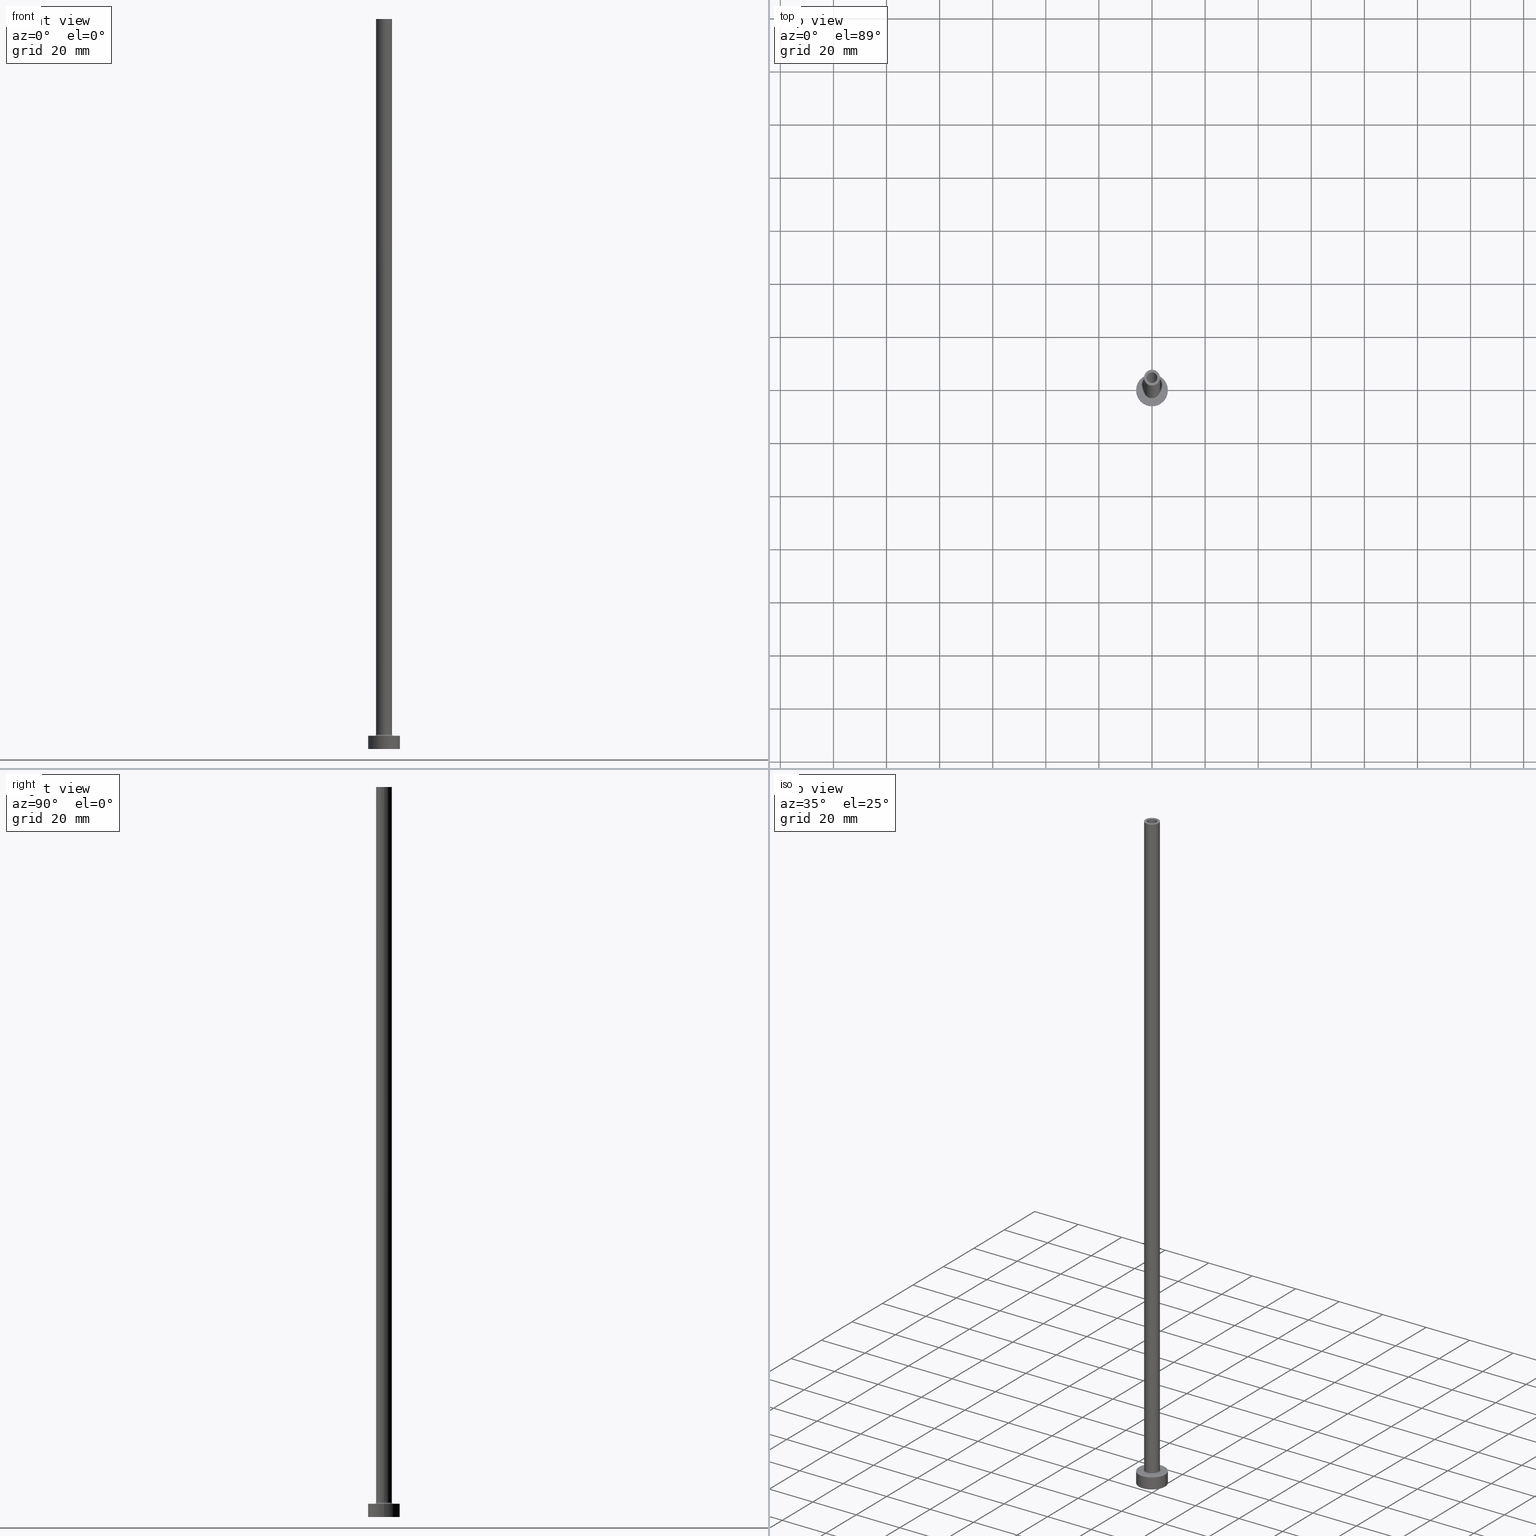
[diagram: canonical four-view strip — front | top / right | iso, engineering-drawing reading convention]
A machine part, canonical four-view strip (front | top / right | iso — engineering-drawing reading convention). The complete STEP part file that produces these views, byte-faithful:
ISO-10303-21;
HEADER;
FILE_DESCRIPTION (( 'STEP AP203' ),
    '1' );
FILE_NAME ('ea6e.STEP',
    '2023-02-13T17:44:41',
    ( '' ),
    ( '' ),
    'SwSTEP 2.0',
    'SolidWorks 2019',
    '' );
FILE_SCHEMA (( 'CONFIG_CONTROL_DESIGN' ));
ENDSEC;

DATA;
#1 = AXIS2_PLACEMENT_3D ( 'NONE', #195, #156, #51 ) ;
#2 = DIRECTION ( 'NONE',  ( 0.000000000000000000, 0.000000000000000000, -1.000000000000000000 ) ) ;
#3 = ORIENTED_EDGE ( 'NONE', *, *, #36, .T. ) ;
#4 = EDGE_CURVE ( 'NONE', #96, #62, #368, .T. ) ;
#5 = CARTESIAN_POINT ( 'NONE',  ( -2.149999999999999911, 0.000000000000000000, 236.0811183182043180 ) ) ;
#6 = DIRECTION ( 'NONE',  ( 0.000000000000000000, 0.000000000000000000, 1.000000000000000000 ) ) ;
#7 = FACE_OUTER_BOUND ( 'NONE', #302, .T. ) ;
#8 = VERTEX_POINT ( 'NONE', #103 ) ;
#9 = AXIS2_PLACEMENT_3D ( 'NONE', #200, #341, #415 ) ;
#10 = CARTESIAN_POINT ( 'NONE',  ( 2.149999999999999911, 2.632990618166809235E-16, 236.0811183182043180 ) ) ;
#11 = CARTESIAN_POINT ( 'NONE',  ( 0.000000000000000000, 0.000000000000000000, 5.500000000000005329 ) ) ;
#12 = CARTESIAN_POINT ( 'NONE',  ( 0.000000000000000000, 0.000000000000000000, 0.000000000000000000 ) ) ;
#13 = ORIENTED_EDGE ( 'NONE', *, *, #166, .F. ) ;
#14 = ADVANCED_FACE ( 'NONE', ( #397 ), #279, .F. ) ;
#15 = LINE ( 'NONE', #16, #213 ) ;
#16 = CARTESIAN_POINT ( 'NONE',  ( 2.000000000000000000, 2.449293598294705921E-16, 275.0000000000000000 ) ) ;
#17 = CC_DESIGN_DATE_AND_TIME_ASSIGNMENT ( #283, #419, ( #430 ) ) ;
#18 = CIRCLE ( 'NONE', #287, 0.4999999999999995559 ) ;
#19 = MECHANICAL_CONTEXT ( 'NONE', #172, 'mechanical' ) ;
#20 = ORIENTED_EDGE ( 'NONE', *, *, #423, .F. ) ;
#21 = DIRECTION ( 'NONE',  ( -0.000000000000000000, -0.000000000000000000, -1.000000000000000000 ) ) ;
#22 = EDGE_CURVE ( 'NONE', #396, #211, #39, .T. ) ;
#23 = VERTEX_POINT ( 'NONE', #421 ) ;
#24 = ORIENTED_EDGE ( 'NONE', *, *, #428, .T. ) ;
#25 =( NAMED_UNIT ( * ) PLANE_ANGLE_UNIT ( ) SI_UNIT ( $, .RADIAN. ) );
#26 = VERTEX_POINT ( 'NONE', #356 ) ;
#27 = CARTESIAN_POINT ( 'NONE',  ( 2.149999999999999911, 2.632990618166809235E-16, 230.0000000000000284 ) ) ;
#28 = ORIENTED_EDGE ( 'NONE', *, *, #127, .F. ) ;
#29 = ORIENTED_EDGE ( 'NONE', *, *, #317, .T. ) ;
#30 = CARTESIAN_POINT ( 'NONE',  ( -6.000000000000000888, 0.000000000000000000, 5.000000000000000000 ) ) ;
#31 = EDGE_LOOP ( 'NONE', ( #282, #450, #184, #343 ) ) ;
#32 = APPLICATION_PROTOCOL_DEFINITION ( 'international standard', 'config_control_design', 1994, #314 ) ;
#33 = ORIENTED_EDGE ( 'NONE', *, *, #114, .F. ) ;
#34 = CARTESIAN_POINT ( 'NONE',  ( 0.000000000000000000, 0.000000000000000000, 5.500000000000005329 ) ) ;
#35 = DIRECTION ( 'NONE',  ( 0.000000000000000000, 0.000000000000000000, 1.000000000000000000 ) ) ;
#36 = EDGE_CURVE ( 'NONE', #95, #227, #286, .T. ) ;
#37 = LINE ( 'NONE', #338, #48 ) ;
#38 = CC_DESIGN_PERSON_AND_ORGANIZATION_ASSIGNMENT ( #215, #80, ( #41 ) ) ;
#39 = CIRCLE ( 'NONE', #345, 2.000000000000000000 ) ;
#40 = AXIS2_PLACEMENT_3D ( 'NONE', #126, #412, #167 ) ;
#41 = PRODUCT_DEFINITION_FORMATION_WITH_SPECIFIED_SOURCE ( 'LIBOVOLN�', '', #187, .NOT_KNOWN. ) ;
#42 = ADVANCED_FACE ( 'NONE', ( #370 ), #189, .F. ) ;
#43 = ORIENTED_EDGE ( 'NONE', *, *, #22, .T. ) ;
#44 = CALENDAR_DATE ( 2023, 13, 2 ) ;
#45 = DIRECTION ( 'NONE',  ( 0.000000000000000000, 0.000000000000000000, -1.000000000000000000 ) ) ;
#46 = EDGE_LOOP ( 'NONE', ( #240, #182 ) ) ;
#47 = PERSON_AND_ORGANIZATION_ROLE ( 'classification_officer' ) ;
#48 = VECTOR ( 'NONE', #21, 1000.000000000000000 ) ;
#49 = ORIENTED_EDGE ( 'NONE', *, *, #310, .F. ) ;
#50 = EDGE_CURVE ( 'NONE', #66, #248, #135, .T. ) ;
#51 = DIRECTION ( 'NONE',  ( 1.000000000000000000, 0.000000000000000000, -0.000000000000000000 ) ) ;
#52 = CARTESIAN_POINT ( 'NONE',  ( 0.000000000000000000, 0.000000000000000000, 236.0811183182043180 ) ) ;
#53 = CARTESIAN_POINT ( 'NONE',  ( 6.000000000000000888, 7.347880794884120722E-16, 0.000000000000000000 ) ) ;
#54 = CARTESIAN_POINT ( 'NONE',  ( 3.000000000000000444, 3.673940397442060361E-16, 275.0000000000000000 ) ) ;
#55 = CIRCLE ( 'NONE', #411, 2.149999999999999911 ) ;
#56 = LINE ( 'NONE', #10, #330 ) ;
#57 = DIRECTION ( 'NONE',  ( -1.000000000000000000, 0.000000000000000000, 0.000000000000000000 ) ) ;
#58 = DIRECTION ( 'NONE',  ( 1.000000000000000000, 0.000000000000000000, 0.000000000000000000 ) ) ;
#59 = CARTESIAN_POINT ( 'NONE',  ( 3.500000000000000444, 0.000000000000000000, 5.000000000000002665 ) ) ;
#60 = ADVANCED_FACE ( 'NONE', ( #297 ), #364, .F. ) ;
#61 = CIRCLE ( 'NONE', #410, 2.000000000000000000 ) ;
#62 = VERTEX_POINT ( 'NONE', #414 ) ;
#63 = CALENDAR_DATE ( 2023, 13, 2 ) ;
#64 = ORIENTED_EDGE ( 'NONE', *, *, #127, .T. ) ;
#65 = DIRECTION ( 'NONE',  ( 1.000000000000000000, 0.000000000000000000, 0.000000000000000000 ) ) ;
#66 = VERTEX_POINT ( 'NONE', #236 ) ;
#67 = ORIENTED_EDGE ( 'NONE', *, *, #274, .T. ) ;
#68 = PERSON_AND_ORGANIZATION ( #392, #130 ) ;
#69 = DIRECTION ( 'NONE',  ( 0.000000000000000000, -1.000000000000000000, 0.000000000000000000 ) ) ;
#70 = CIRCLE ( 'NONE', #124, 3.000000000000000444 ) ;
#71 = DIRECTION ( 'NONE',  ( -1.000000000000000000, 1.224646799147354440E-16, 0.000000000000000000 ) ) ;
#72 = DIRECTION ( 'NONE',  ( 1.000000000000000000, 0.000000000000000000, 0.000000000000000000 ) ) ;
#73 = CYLINDRICAL_SURFACE ( 'NONE', #76, 3.000000000000000444 ) ;
#74 = CALENDAR_DATE ( 2023, 13, 2 ) ;
#75 = ADVANCED_FACE ( 'NONE', ( #202 ), #81, .F. ) ;
#76 = AXIS2_PLACEMENT_3D ( 'NONE', #176, #132, #271 ) ;
#77 = SECURITY_CLASSIFICATION_LEVEL ( 'unclassified' ) ;
#78 = CARTESIAN_POINT ( 'NONE',  ( -2.000000000000000000, 0.000000000000000000, 275.0000000000000000 ) ) ;
#79 = DIRECTION ( 'NONE',  ( 0.000000000000000000, 0.000000000000000000, 1.000000000000000000 ) ) ;
#80 = PERSON_AND_ORGANIZATION_ROLE ( 'design_supplier' ) ;
#81 = TOROIDAL_SURFACE ( 'NONE', #357, 3.500000000000000444, 0.5000000000000000000 ) ;
#82 = AXIS2_PLACEMENT_3D ( 'NONE', #305, #208, #447 ) ;
#83 = ORIENTED_EDGE ( 'NONE', *, *, #400, .T. ) ;
#84 = DIRECTION ( 'NONE',  ( 0.000000000000000000, 0.000000000000000000, -1.000000000000000000 ) ) ;
#85 = DIRECTION ( 'NONE',  ( -1.000000000000000000, 0.000000000000000000, 0.000000000000000000 ) ) ;
#86 = CARTESIAN_POINT ( 'NONE',  ( 0.000000000000000000, 0.000000000000000000, 0.000000000000000000 ) ) ;
#87 = LINE ( 'NONE', #188, #147 ) ;
#88 = TOROIDAL_SURFACE ( 'NONE', #424, 3.500000000000000444, 0.5000000000000000000 ) ;
#89 = FACE_OUTER_BOUND ( 'NONE', #31, .T. ) ;
#90 = PERSON_AND_ORGANIZATION ( #392, #130 ) ;
#91 = CLOSED_SHELL ( 'NONE', ( #42, #406, #75, #110, #246, #376, #183, #365, #263, #323, #346, #60, #350, #14 ) ) ;
#92 = CARTESIAN_POINT ( 'NONE',  ( -2.149999999999999911, 0.000000000000000000, 230.0000000000000284 ) ) ;
#93 = CC_DESIGN_APPROVAL ( #149, ( #210 ) ) ;
#94 = ORIENTED_EDGE ( 'NONE', *, *, #317, .F. ) ;
#95 = VERTEX_POINT ( 'NONE', #92 ) ;
#96 = VERTEX_POINT ( 'NONE', #380 ) ;
#97 = EDGE_LOOP ( 'NONE', ( #280, #109, #3, #235 ) ) ;
#98 = AXIS2_PLACEMENT_3D ( 'NONE', #335, #151, #299 ) ;
#99 = PERSON_AND_ORGANIZATION ( #392, #130 ) ;
#100 = PRODUCT_DEFINITION_SHAPE ( 'NONE', 'NONE',  #210 ) ;
#101 = EDGE_CURVE ( 'NONE', #26, #23, #154, .T. ) ;
#102 = PERSON_AND_ORGANIZATION ( #392, #130 ) ;
#103 = CARTESIAN_POINT ( 'NONE',  ( 6.000000000000000888, 7.347880794884120722E-16, 5.000000000000000000 ) ) ;
#104 = ORIENTED_EDGE ( 'NONE', *, *, #436, .T. ) ;
#105 = DATE_AND_TIME ( #180, #207 ) ;
#106 = CIRCLE ( 'NONE', #98, 3.500000000000000444 ) ;
#107 = CC_DESIGN_PERSON_AND_ORGANIZATION_ASSIGNMENT ( #251, #47, ( #430 ) ) ;
#108 = DIRECTION ( 'NONE',  ( 0.000000000000000000, 0.000000000000000000, 1.000000000000000000 ) ) ;
#109 = ORIENTED_EDGE ( 'NONE', *, *, #143, .T. ) ;
#110 = ADVANCED_FACE ( 'NONE', ( #239 ), #270, .T. ) ;
#111 = DIRECTION ( 'NONE',  ( 1.000000000000000000, 0.000000000000000000, -0.000000000000000000 ) ) ;
#112 = CIRCLE ( 'NONE', #351, 6.000000000000000888 ) ;
#113 = EDGE_LOOP ( 'NONE', ( #245, #133 ) ) ;
#114 = EDGE_CURVE ( 'NONE', #96, #388, #409, .T. ) ;
#115 = FACE_OUTER_BOUND ( 'NONE', #178, .T. ) ;
#116 = DIRECTION ( 'NONE',  ( 0.000000000000000000, 0.000000000000000000, 1.000000000000000000 ) ) ;
#117 = ADVANCED_BREP_SHAPE_REPRESENTATION ( 'ea6e', ( #358, #291 ), #298 ) ;
#118 = CYLINDRICAL_SURFACE ( 'NONE', #257, 6.000000000000000888 ) ;
#119 = DIRECTION ( 'NONE',  ( 1.000000000000000000, 0.000000000000000000, 0.000000000000000000 ) ) ;
#120 = AXIS2_PLACEMENT_3D ( 'NONE', #163, #201, #228 ) ;
#121 = APPROVAL_DATE_TIME ( #407, #149 ) ;
#122 = VERTEX_POINT ( 'NONE', #27 ) ;
#123 = CYLINDRICAL_SURFACE ( 'NONE', #40, 2.149999999999999911 ) ;
#124 = AXIS2_PLACEMENT_3D ( 'NONE', #193, #325, #431 ) ;
#125 = CC_DESIGN_APPROVAL ( #284, ( #41 ) ) ;
#126 = CARTESIAN_POINT ( 'NONE',  ( 0.000000000000000000, 0.000000000000000000, 236.0811183182043180 ) ) ;
#127 = EDGE_CURVE ( 'NONE', #8, #162, #378, .T. ) ;
#128 = CARTESIAN_POINT ( 'NONE',  ( 0.000000000000000000, 0.000000000000000000, 230.0000000000000284 ) ) ;
#129 = CARTESIAN_POINT ( 'NONE',  ( 0.000000000000000000, 0.000000000000000000, 230.0000000000000284 ) ) ;
#130 = ORGANIZATION ( 'NEUR�EN�', 'NEUR�EN�', '' ) ;
#131 = ORIENTED_EDGE ( 'NONE', *, *, #22, .F. ) ;
#132 = DIRECTION ( 'NONE',  ( -0.000000000000000000, -0.000000000000000000, -1.000000000000000000 ) ) ;
#133 = ORIENTED_EDGE ( 'NONE', *, *, #293, .T. ) ;
#134 = DATE_AND_TIME ( #44, #425 ) ;
#135 = CIRCLE ( 'NONE', #204, 6.000000000000000888 ) ;
#136 = DIRECTION ( 'NONE',  ( 0.000000000000000000, 0.000000000000000000, 1.000000000000000000 ) ) ;
#137 = CARTESIAN_POINT ( 'NONE',  ( 0.000000000000000000, 0.000000000000000000, 275.0000000000000000 ) ) ;
#138 = ORIENTED_EDGE ( 'NONE', *, *, #443, .T. ) ;
#139 = AXIS2_PLACEMENT_3D ( 'NONE', #86, #435, #334 ) ;
#140 = EDGE_CURVE ( 'NONE', #62, #96, #429, .T. ) ;
#141 = ORIENTED_EDGE ( 'NONE', *, *, #454, .T. ) ;
#142 = CYLINDRICAL_SURFACE ( 'NONE', #206, 6.000000000000000888 ) ;
#143 = EDGE_CURVE ( 'NONE', #122, #95, #437, .T. ) ;
#144 = AXIS2_PLACEMENT_3D ( 'NONE', #253, #116, #394 ) ;
#145 = DIRECTION ( 'NONE',  ( 1.000000000000000000, 0.000000000000000000, 0.000000000000000000 ) ) ;
#146 = PLANE ( 'NONE',  #144 ) ;
#147 = VECTOR ( 'NONE', #459, 1000.000000000000000 ) ;
#148 = CC_DESIGN_SECURITY_CLASSIFICATION ( #430, ( #41 ) ) ;
#149 = APPROVAL ( #265, 'NEUR�EN�' ) ;
#150 = LINE ( 'NONE', #212, #190 ) ;
#151 = DIRECTION ( 'NONE',  ( -0.000000000000000000, -0.000000000000000000, -1.000000000000000000 ) ) ;
#152 = CARTESIAN_POINT ( 'NONE',  ( 0.000000000000000000, 0.000000000000000000, 275.0000000000000000 ) ) ;
#153 = DIRECTION ( 'NONE',  ( 1.000000000000000000, 0.000000000000000000, 0.000000000000000000 ) ) ;
#154 = CIRCLE ( 'NONE', #219, 2.000000000000000000 ) ;
#155 = FACE_OUTER_BOUND ( 'NONE', #315, .T. ) ;
#156 = DIRECTION ( 'NONE',  ( 0.000000000000000000, 0.000000000000000000, 1.000000000000000000 ) ) ;
#157 = EDGE_CURVE ( 'NONE', #417, #62, #37, .T. ) ;
#158 = CIRCLE ( 'NONE', #321, 3.500000000000000444 ) ;
#159 = PERSON_AND_ORGANIZATION_ROLE ( 'design_owner' ) ;
#160 = EDGE_LOOP ( 'NONE', ( #242, #442, #390, #322 ) ) ;
#161 = CARTESIAN_POINT ( 'NONE',  ( -6.000000000000000888, 0.000000000000000000, 5.000000000000000000 ) ) ;
#162 = VERTEX_POINT ( 'NONE', #161 ) ;
#163 = CARTESIAN_POINT ( 'NONE',  ( 0.000000000000000000, 0.000000000000000000, 275.0000000000000000 ) ) ;
#164 = DIRECTION ( 'NONE',  ( 0.000000000000000000, 0.000000000000000000, 1.000000000000000000 ) ) ;
#165 = ORIENTED_EDGE ( 'NONE', *, *, #143, .F. ) ;
#166 = EDGE_CURVE ( 'NONE', #388, #457, #158, .T. ) ;
#167 = DIRECTION ( 'NONE',  ( -1.000000000000000000, 0.000000000000000000, 0.000000000000000000 ) ) ;
#168 = CIRCLE ( 'NONE', #139, 6.000000000000000888 ) ;
#169 = CARTESIAN_POINT ( 'NONE',  ( 6.000000000000000888, 7.347880794884120722E-16, 5.000000000000000000 ) ) ;
#170 = DIRECTION ( 'NONE',  ( 0.000000000000000000, 0.000000000000000000, 1.000000000000000000 ) ) ;
#171 = DIRECTION ( 'NONE',  ( 1.000000000000000000, 0.000000000000000000, 0.000000000000000000 ) ) ;
#172 = APPLICATION_CONTEXT ( 'configuration controlled 3d designs of mechanical parts and assemblies' ) ;
#173 = ORIENTED_EDGE ( 'NONE', *, *, #310, .T. ) ;
#174 = DATE_TIME_ROLE ( 'creation_date' ) ;
#175 = ORIENTED_EDGE ( 'NONE', *, *, #400, .F. ) ;
#176 = CARTESIAN_POINT ( 'NONE',  ( 0.000000000000000000, 0.000000000000000000, 275.0000000000000000 ) ) ;
#177 = DIRECTION ( 'NONE',  ( 0.000000000000000000, 0.000000000000000000, 1.000000000000000000 ) ) ;
#178 = EDGE_LOOP ( 'NONE', ( #28, #461, #445, #422 ) ) ;
#179 = APPROVAL ( #354, 'NEUR�EN�' ) ;
#180 = CALENDAR_DATE ( 2023, 13, 2 ) ;
#181 = FACE_OUTER_BOUND ( 'NONE', #258, .T. ) ;
#182 = ORIENTED_EDGE ( 'NONE', *, *, #436, .F. ) ;
#183 = ADVANCED_FACE ( 'NONE', ( #404, #155 ), #327, .T. ) ;
#184 = ORIENTED_EDGE ( 'NONE', *, *, #114, .T. ) ;
#185 = DIRECTION ( 'NONE',  ( 0.000000000000000000, 0.000000000000000000, 1.000000000000000000 ) ) ;
#186 = EDGE_CURVE ( 'NONE', #122, #448, #56, .T. ) ;
#187 = PRODUCT ( 'ea6e', 'ea6e', '', ( #19 ) ) ;
#188 = CARTESIAN_POINT ( 'NONE',  ( -2.000000000000000000, 0.000000000000000000, 275.0000000000000000 ) ) ;
#189 = CYLINDRICAL_SURFACE ( 'NONE', #403, 2.000000000000000000 ) ;
#190 = VECTOR ( 'NONE', #352, 1000.000000000000000 ) ;
#191 = DIRECTION ( 'NONE',  ( -0.000000000000000000, -0.000000000000000000, -1.000000000000000000 ) ) ;
#192 = DIRECTION ( 'NONE',  ( 0.000000000000000000, 0.000000000000000000, -1.000000000000000000 ) ) ;
#193 = CARTESIAN_POINT ( 'NONE',  ( 0.000000000000000000, 0.000000000000000000, 275.0000000000000000 ) ) ;
#194 = EDGE_CURVE ( 'NONE', #211, #396, #61, .T. ) ;
#195 = CARTESIAN_POINT ( 'NONE',  ( 0.000000000000000000, 0.000000000000000000, 230.0000000000000284 ) ) ;
#196 = CARTESIAN_POINT ( 'NONE',  ( 0.000000000000000000, 0.000000000000000000, 0.000000000000000000 ) ) ;
#197 = AXIS2_PLACEMENT_3D ( 'NONE', #266, #416, #342 ) ;
#198 = ORIENTED_EDGE ( 'NONE', *, *, #274, .F. ) ;
#199 = DATE_AND_TIME ( #63, #244 ) ;
#200 = CARTESIAN_POINT ( 'NONE',  ( 0.000000000000000000, 0.000000000000000000, 275.0000000000000000 ) ) ;
#201 = DIRECTION ( 'NONE',  ( 0.000000000000000000, 0.000000000000000000, 1.000000000000000000 ) ) ;
#202 = FACE_OUTER_BOUND ( 'NONE', #233, .T. ) ;
#203 = CC_DESIGN_PERSON_AND_ORGANIZATION_ASSIGNMENT ( #102, #420, ( #41 ) ) ;
#204 = AXIS2_PLACEMENT_3D ( 'NONE', #12, #373, #153 ) ;
#205 = DIRECTION ( 'NONE',  ( 0.000000000000000000, 0.000000000000000000, 1.000000000000000000 ) ) ;
#206 = AXIS2_PLACEMENT_3D ( 'NONE', #259, #290, #85 ) ;
#207 = LOCAL_TIME ( 18, 44, 41.00000000000000000, #320 ) ;
#208 = DIRECTION ( 'NONE',  ( 0.000000000000000000, 0.000000000000000000, 1.000000000000000000 ) ) ;
#209 = DIRECTION ( 'NONE',  ( 0.000000000000000000, 0.000000000000000000, -1.000000000000000000 ) ) ;
#210 = PRODUCT_DEFINITION ( 'NEZN�M�', '', #41, #319 ) ;
#211 = VERTEX_POINT ( 'NONE', #223 ) ;
#212 = CARTESIAN_POINT ( 'NONE',  ( 3.000000000000000444, 3.673940397442060361E-16, 275.0000000000000000 ) ) ;
#213 = VECTOR ( 'NONE', #45, 1000.000000000000000 ) ;
#214 = EDGE_LOOP ( 'NONE', ( #175, #386, #67, #218 ) ) ;
#215 = PERSON_AND_ORGANIZATION ( #392, #130 ) ;
#216 = PLANE ( 'NONE',  #371 ) ;
#217 = CARTESIAN_POINT ( 'NONE',  ( 0.000000000000000000, 0.000000000000000000, 275.0000000000000000 ) ) ;
#218 = ORIENTED_EDGE ( 'NONE', *, *, #454, .F. ) ;
#219 = AXIS2_PLACEMENT_3D ( 'NONE', #128, #205, #65 ) ;
#220 = CIRCLE ( 'NONE', #361, 2.149999999999999911 ) ;
#221 = APPROVAL_PERSON_ORGANIZATION ( #255, #179, #455 ) ;
#222 = DIRECTION ( 'NONE',  ( 0.000000000000000000, 0.000000000000000000, 1.000000000000000000 ) ) ;
#223 = CARTESIAN_POINT ( 'NONE',  ( 2.000000000000000000, 2.449293598294705921E-16, 275.0000000000000000 ) ) ;
#224 = DIRECTION ( 'NONE',  ( 1.000000000000000000, 0.000000000000000000, -0.000000000000000000 ) ) ;
#225 = EDGE_CURVE ( 'NONE', #304, #417, #70, .T. ) ;
#226 = CARTESIAN_POINT ( 'NONE',  ( 0.000000000000000000, 0.000000000000000000, 5.000000000000000000 ) ) ;
#227 = VERTEX_POINT ( 'NONE', #432 ) ;
#228 = DIRECTION ( 'NONE',  ( 1.000000000000000000, 0.000000000000000000, 0.000000000000000000 ) ) ;
#229 = AXIS2_PLACEMENT_3D ( 'NONE', #137, #2, #360 ) ;
#230 = PERSON_AND_ORGANIZATION_ROLE ( 'creator' ) ;
#231 = APPROVAL_PERSON_ORGANIZATION ( #68, #149, #308 ) ;
#232 = DIRECTION ( 'NONE',  ( 0.000000000000000000, 0.000000000000000000, 1.000000000000000000 ) ) ;
#233 = EDGE_LOOP ( 'NONE', ( #295, #440, #13, #33 ) ) ;
#234 =( NAMED_UNIT ( * ) SI_UNIT ( $, .STERADIAN. ) SOLID_ANGLE_UNIT ( ) );
#235 = ORIENTED_EDGE ( 'NONE', *, *, #359, .T. ) ;
#236 = CARTESIAN_POINT ( 'NONE',  ( -6.000000000000000888, 0.000000000000000000, 0.000000000000000000 ) ) ;
#237 = ORIENTED_EDGE ( 'NONE', *, *, #428, .F. ) ;
#238 = LINE ( 'NONE', #169, #243 ) ;
#239 = FACE_OUTER_BOUND ( 'NONE', #160, .T. ) ;
#240 = ORIENTED_EDGE ( 'NONE', *, *, #359, .F. ) ;
#241 = DIRECTION ( 'NONE',  ( 1.224646799147353207E-16, 1.000000000000000000, -0.000000000000000000 ) ) ;
#242 = ORIENTED_EDGE ( 'NONE', *, *, #225, .F. ) ;
#243 = VECTOR ( 'NONE', #340, 1000.000000000000000 ) ;
#244 = LOCAL_TIME ( 18, 44, 41.00000000000000000, #379 ) ;
#245 = ORIENTED_EDGE ( 'NONE', *, *, #166, .T. ) ;
#246 = ADVANCED_FACE ( 'NONE', ( #115 ), #142, .T. ) ;
#247 = APPROVAL_DATE_TIME ( #105, #179 ) ;
#248 = VERTEX_POINT ( 'NONE', #53 ) ;
#249 = EDGE_LOOP ( 'NONE', ( #43, #83, #250, #198 ) ) ;
#250 = ORIENTED_EDGE ( 'NONE', *, *, #101, .F. ) ;
#251 = PERSON_AND_ORGANIZATION ( #392, #130 ) ;
#252 = EDGE_CURVE ( 'NONE', #304, #96, #150, .T. ) ;
#253 = CARTESIAN_POINT ( 'NONE',  ( 0.000000000000000000, 0.000000000000000000, 0.000000000000000000 ) ) ;
#254 = ORIENTED_EDGE ( 'NONE', *, *, #50, .T. ) ;
#255 = PERSON_AND_ORGANIZATION ( #392, #130 ) ;
#256 = ORIENTED_EDGE ( 'NONE', *, *, #186, .T. ) ;
#257 = AXIS2_PLACEMENT_3D ( 'NONE', #374, #260, #57 ) ;
#258 = EDGE_LOOP ( 'NONE', ( #173, #256, #104, #381 ) ) ;
#259 = CARTESIAN_POINT ( 'NONE',  ( 0.000000000000000000, 0.000000000000000000, 5.000000000000000000 ) ) ;
#260 = DIRECTION ( 'NONE',  ( -0.000000000000000000, -0.000000000000000000, -1.000000000000000000 ) ) ;
#261 = CARTESIAN_POINT ( 'NONE',  ( 0.000000000000000000, 0.000000000000000000, 275.0000000000000000 ) ) ;
#262 = EDGE_LOOP ( 'NONE', ( #399, #141 ) ) ;
#263 = ADVANCED_FACE ( 'NONE', ( #387 ), #73, .T. ) ;
#264 = AXIS2_PLACEMENT_3D ( 'NONE', #331, #6, #111 ) ;
#265 = APPROVAL_STATUS ( 'not_yet_approved' ) ;
#266 = CARTESIAN_POINT ( 'NONE',  ( 0.000000000000000000, 0.000000000000000000, 0.000000000000000000 ) ) ;
#267 = CARTESIAN_POINT ( 'NONE',  ( 2.149999999999999911, 2.632990618166809235E-16, 0.000000000000000000 ) ) ;
#268 = AXIS2_PLACEMENT_3D ( 'NONE', #34, #170, #452 ) ;
#269 = CARTESIAN_POINT ( 'NONE',  ( -3.500000000000000444, 4.286263797015737088E-16, 5.000000000000002665 ) ) ;
#270 = CYLINDRICAL_SURFACE ( 'NONE', #9, 3.000000000000000444 ) ;
#271 = DIRECTION ( 'NONE',  ( -1.000000000000000000, 0.000000000000000000, 0.000000000000000000 ) ) ;
#272 = CALENDAR_DATE ( 2023, 13, 2 ) ;
#273 = DIRECTION ( 'NONE',  ( 0.000000000000000000, 0.000000000000000000, -1.000000000000000000 ) ) ;
#274 = EDGE_CURVE ( 'NONE', #396, #26, #87, .T. ) ;
#275 = VECTOR ( 'NONE', #366, 1000.000000000000000 ) ;
#276 = CIRCLE ( 'NONE', #120, 3.000000000000000444 ) ;
#277 = ORIENTED_EDGE ( 'NONE', *, *, #194, .F. ) ;
#278 = COORDINATED_UNIVERSAL_TIME_OFFSET ( 1, 0, .AHEAD. ) ;
#279 = CYLINDRICAL_SURFACE ( 'NONE', #229, 2.000000000000000000 ) ;
#280 = ORIENTED_EDGE ( 'NONE', *, *, #186, .F. ) ;
#281 = AXIS2_PLACEMENT_3D ( 'NONE', #434, #79, #324 ) ;
#282 = ORIENTED_EDGE ( 'NONE', *, *, #418, .F. ) ;
#283 = DATE_AND_TIME ( #74, #337 ) ;
#284 = APPROVAL ( #456, 'NEUR�EN�' ) ;
#285 = CARTESIAN_POINT ( 'NONE',  ( 0.000000000000000000, 0.000000000000000000, 230.0000000000000284 ) ) ;
#286 = LINE ( 'NONE', #5, #275 ) ;
#287 = AXIS2_PLACEMENT_3D ( 'NONE', #336, #241, #71 ) ;
#288 = CC_DESIGN_PERSON_AND_ORGANIZATION_ASSIGNMENT ( #300, #159, ( #187 ) ) ;
#289 = ORIENTED_EDGE ( 'NONE', *, *, #157, .T. ) ;
#290 = DIRECTION ( 'NONE',  ( -0.000000000000000000, -0.000000000000000000, -1.000000000000000000 ) ) ;
#291 = AXIS2_PLACEMENT_3D ( 'NONE', #196, #35, #171 ) ;
#292 = CARTESIAN_POINT ( 'NONE',  ( 0.000000000000000000, 0.000000000000000000, 0.000000000000000000 ) ) ;
#293 = EDGE_CURVE ( 'NONE', #457, #388, #106, .T. ) ;
#294 = FACE_BOUND ( 'NONE', #46, .T. ) ;
#295 = ORIENTED_EDGE ( 'NONE', *, *, #140, .F. ) ;
#296 = DIRECTION ( 'NONE',  ( 0.000000000000000000, 0.000000000000000000, 1.000000000000000000 ) ) ;
#297 = FACE_OUTER_BOUND ( 'NONE', #97, .T. ) ;
#298 =( GEOMETRIC_REPRESENTATION_CONTEXT ( 3 ) GLOBAL_UNCERTAINTY_ASSIGNED_CONTEXT ( ( #311 ) ) GLOBAL_UNIT_ASSIGNED_CONTEXT ( ( #349, #25, #234 ) ) REPRESENTATION_CONTEXT ( 'NONE', 'WORKASPACE' ) );
#299 = DIRECTION ( 'NONE',  ( 1.000000000000000000, 0.000000000000000000, 0.000000000000000000 ) ) ;
#300 = PERSON_AND_ORGANIZATION ( #392, #130 ) ;
#301 = CARTESIAN_POINT ( 'NONE',  ( 0.000000000000000000, 0.000000000000000000, 5.000000000000000000 ) ) ;
#302 = EDGE_LOOP ( 'NONE', ( #309, #367 ) ) ;
#303 = DIRECTION ( 'NONE',  ( 1.000000000000000000, 0.000000000000000000, 0.000000000000000000 ) ) ;
#304 = VERTEX_POINT ( 'NONE', #54 ) ;
#305 = CARTESIAN_POINT ( 'NONE',  ( 0.000000000000000000, 0.000000000000000000, 230.0000000000000284 ) ) ;
#306 = AXIS2_PLACEMENT_3D ( 'NONE', #129, #385, #72 ) ;
#307 = DIRECTION ( 'NONE',  ( 1.000000000000000000, 0.000000000000000000, 0.000000000000000000 ) ) ;
#308 = APPROVAL_ROLE ( '' ) ;
#309 = ORIENTED_EDGE ( 'NONE', *, *, #50, .F. ) ;
#310 = EDGE_CURVE ( 'NONE', #95, #122, #55, .T. ) ;
#311 = UNCERTAINTY_MEASURE_WITH_UNIT (LENGTH_MEASURE( 1.000000000000000082E-05 ), #349, 'distance_accuracy_value', 'NONE');
#312 = APPLICATION_PROTOCOL_DEFINITION ( 'international standard', 'config_control_design', 1994, #172 ) ;
#313 = CC_DESIGN_PERSON_AND_ORGANIZATION_ASSIGNMENT ( #90, #230, ( #210 ) ) ;
#314 = APPLICATION_CONTEXT ( 'configuration controlled 3d designs of mechanical parts and assemblies' ) ;
#315 = EDGE_LOOP ( 'NONE', ( #29, #64 ) ) ;
#316 = AXIS2_PLACEMENT_3D ( 'NONE', #348, #164, #303 ) ;
#317 = EDGE_CURVE ( 'NONE', #162, #8, #112, .T. ) ;
#318 = EDGE_LOOP ( 'NONE', ( #49, #165 ) ) ;
#319 = DESIGN_CONTEXT ( 'detailed design', #314, 'design' ) ;
#320 = COORDINATED_UNIVERSAL_TIME_OFFSET ( 1, 0, .AHEAD. ) ;
#321 = AXIS2_PLACEMENT_3D ( 'NONE', #301, #441, #58 ) ;
#322 = ORIENTED_EDGE ( 'NONE', *, *, #157, .F. ) ;
#323 = ADVANCED_FACE ( 'NONE', ( #438, #363 ), #216, .T. ) ;
#324 = DIRECTION ( 'NONE',  ( 1.000000000000000000, 0.000000000000000000, 0.000000000000000000 ) ) ;
#325 = DIRECTION ( 'NONE',  ( 0.000000000000000000, 0.000000000000000000, 1.000000000000000000 ) ) ;
#326 = DIRECTION ( 'NONE',  ( 1.000000000000000000, 0.000000000000000000, 0.000000000000000000 ) ) ;
#327 = PLANE ( 'NONE',  #264 ) ;
#328 = DIRECTION ( 'NONE',  ( 1.000000000000000000, 0.000000000000000000, 0.000000000000000000 ) ) ;
#329 = EDGE_CURVE ( 'NONE', #248, #66, #168, .T. ) ;
#330 = VECTOR ( 'NONE', #84, 1000.000000000000000 ) ;
#331 = CARTESIAN_POINT ( 'NONE',  ( 0.000000000000000000, 0.000000000000000000, 5.000000000000000000 ) ) ;
#332 = DIRECTION ( 'NONE',  ( 1.000000000000000000, 0.000000000000000000, 0.000000000000000000 ) ) ;
#333 = DIRECTION ( 'NONE',  ( -1.000000000000000000, 0.000000000000000000, 0.000000000000000000 ) ) ;
#334 = DIRECTION ( 'NONE',  ( 1.000000000000000000, 0.000000000000000000, 0.000000000000000000 ) ) ;
#335 = CARTESIAN_POINT ( 'NONE',  ( 0.000000000000000000, 0.000000000000000000, 5.000000000000000000 ) ) ;
#336 = CARTESIAN_POINT ( 'NONE',  ( -3.500000000000000444, 4.286263797015737088E-16, 5.500000000000005329 ) ) ;
#337 = LOCAL_TIME ( 18, 44, 41.00000000000000000, #391 ) ;
#338 = CARTESIAN_POINT ( 'NONE',  ( -3.000000000000000444, 0.000000000000000000, 275.0000000000000000 ) ) ;
#339 = EDGE_LOOP ( 'NONE', ( #20, #94, #138, #254 ) ) ;
#340 = DIRECTION ( 'NONE',  ( -0.000000000000000000, -0.000000000000000000, -1.000000000000000000 ) ) ;
#341 = DIRECTION ( 'NONE',  ( -0.000000000000000000, -0.000000000000000000, -1.000000000000000000 ) ) ;
#342 = DIRECTION ( 'NONE',  ( 1.000000000000000000, 0.000000000000000000, 0.000000000000000000 ) ) ;
#343 = ORIENTED_EDGE ( 'NONE', *, *, #293, .F. ) ;
#344 = CARTESIAN_POINT ( 'NONE',  ( 0.000000000000000000, 0.000000000000000000, 5.500000000000005329 ) ) ;
#345 = AXIS2_PLACEMENT_3D ( 'NONE', #217, #177, #326 ) ;
#346 = ADVANCED_FACE ( 'NONE', ( #89 ), #88, .F. ) ;
#347 = CIRCLE ( 'NONE', #197, 2.149999999999999911 ) ;
#348 = CARTESIAN_POINT ( 'NONE',  ( 0.000000000000000000, 0.000000000000000000, 5.000000000000000000 ) ) ;
#349 =( LENGTH_UNIT ( ) NAMED_UNIT ( * ) SI_UNIT ( .MILLI., .METRE. ) );
#350 = ADVANCED_FACE ( 'NONE', ( #426, #369 ), #355, .F. ) ;
#351 = AXIS2_PLACEMENT_3D ( 'NONE', #226, #296, #332 ) ;
#352 = DIRECTION ( 'NONE',  ( -0.000000000000000000, -0.000000000000000000, -1.000000000000000000 ) ) ;
#353 = ORIENTED_EDGE ( 'NONE', *, *, #225, .T. ) ;
#354 = APPROVAL_STATUS ( 'not_yet_approved' ) ;
#355 = PLANE ( 'NONE',  #1 ) ;
#356 = CARTESIAN_POINT ( 'NONE',  ( -2.000000000000000000, 0.000000000000000000, 230.0000000000000284 ) ) ;
#357 = AXIS2_PLACEMENT_3D ( 'NONE', #344, #232, #307 ) ;
#358 = MANIFOLD_SOLID_BREP ( 'Odebrat vysunut�m4', #91 ) ;
#359 = EDGE_CURVE ( 'NONE', #227, #448, #220, .T. ) ;
#360 = DIRECTION ( 'NONE',  ( -1.000000000000000000, 0.000000000000000000, 0.000000000000000000 ) ) ;
#361 = AXIS2_PLACEMENT_3D ( 'NONE', #292, #191, #328 ) ;
#362 = CC_DESIGN_DATE_AND_TIME_ASSIGNMENT ( #199, #174, ( #210 ) ) ;
#363 = FACE_OUTER_BOUND ( 'NONE', #377, .T. ) ;
#364 = CYLINDRICAL_SURFACE ( 'NONE', #460, 2.149999999999999911 ) ;
#365 = ADVANCED_FACE ( 'NONE', ( #294, #7 ), #146, .F. ) ;
#366 = DIRECTION ( 'NONE',  ( 0.000000000000000000, 0.000000000000000000, -1.000000000000000000 ) ) ;
#367 = ORIENTED_EDGE ( 'NONE', *, *, #329, .F. ) ;
#368 = CIRCLE ( 'NONE', #281, 3.000000000000000444 ) ;
#369 = FACE_OUTER_BOUND ( 'NONE', #318, .T. ) ;
#370 = FACE_OUTER_BOUND ( 'NONE', #249, .T. ) ;
#371 = AXIS2_PLACEMENT_3D ( 'NONE', #152, #108, #224 ) ;
#372 = CARTESIAN_POINT ( 'NONE',  ( 0.000000000000000000, 0.000000000000000000, 275.0000000000000000 ) ) ;
#373 = DIRECTION ( 'NONE',  ( 0.000000000000000000, 0.000000000000000000, 1.000000000000000000 ) ) ;
#374 = CARTESIAN_POINT ( 'NONE',  ( 0.000000000000000000, 0.000000000000000000, 5.000000000000000000 ) ) ;
#375 = ORIENTED_EDGE ( 'NONE', *, *, #252, .F. ) ;
#376 = ADVANCED_FACE ( 'NONE', ( #433 ), #118, .T. ) ;
#377 = EDGE_LOOP ( 'NONE', ( #24, #353 ) ) ;
#378 = CIRCLE ( 'NONE', #316, 6.000000000000000888 ) ;
#379 = COORDINATED_UNIVERSAL_TIME_OFFSET ( 1, 0, .AHEAD. ) ;
#380 = CARTESIAN_POINT ( 'NONE',  ( 3.000000000000000444, 3.673940397442060361E-16, 5.500000000000005329 ) ) ;
#381 = ORIENTED_EDGE ( 'NONE', *, *, #36, .F. ) ;
#382 = CARTESIAN_POINT ( 'NONE',  ( 3.500000000000000444, 0.000000000000000000, 5.500000000000005329 ) ) ;
#383 = CARTESIAN_POINT ( 'NONE',  ( -3.000000000000000444, 0.000000000000000000, 275.0000000000000000 ) ) ;
#384 = CIRCLE ( 'NONE', #82, 2.000000000000000000 ) ;
#385 = DIRECTION ( 'NONE',  ( 0.000000000000000000, 0.000000000000000000, 1.000000000000000000 ) ) ;
#386 = ORIENTED_EDGE ( 'NONE', *, *, #194, .T. ) ;
#387 = FACE_OUTER_BOUND ( 'NONE', #427, .T. ) ;
#388 = VERTEX_POINT ( 'NONE', #59 ) ;
#389 = APPROVAL_DATE_TIME ( #134, #284 ) ;
#390 = ORIENTED_EDGE ( 'NONE', *, *, #4, .T. ) ;
#391 = COORDINATED_UNIVERSAL_TIME_OFFSET ( 1, 0, .AHEAD. ) ;
#392 = PERSON ( 'NEUR�EN�', 'NEUR�EN�', 'NEUR�EN�', ('NEUR�EN�'), ('NEUR�EN�'), ('NEUR�EN�') ) ;
#393 = AXIS2_PLACEMENT_3D ( 'NONE', #382, #69, #273 ) ;
#394 = DIRECTION ( 'NONE',  ( 1.000000000000000000, 0.000000000000000000, -0.000000000000000000 ) ) ;
#395 = ORIENTED_EDGE ( 'NONE', *, *, #140, .T. ) ;
#396 = VERTEX_POINT ( 'NONE', #78 ) ;
#397 = FACE_OUTER_BOUND ( 'NONE', #214, .T. ) ;
#398 = LOCAL_TIME ( 18, 44, 41.00000000000000000, #451 ) ;
#399 = ORIENTED_EDGE ( 'NONE', *, *, #101, .T. ) ;
#400 = EDGE_CURVE ( 'NONE', #211, #23, #15, .T. ) ;
#401 = DIRECTION ( 'NONE',  ( 1.000000000000000000, 0.000000000000000000, 0.000000000000000000 ) ) ;
#402 = EDGE_LOOP ( 'NONE', ( #131, #277 ) ) ;
#403 = AXIS2_PLACEMENT_3D ( 'NONE', #261, #192, #333 ) ;
#404 = FACE_BOUND ( 'NONE', #113, .T. ) ;
#405 = VECTOR ( 'NONE', #439, 1000.000000000000000 ) ;
#406 = ADVANCED_FACE ( 'NONE', ( #181 ), #123, .F. ) ;
#407 = DATE_AND_TIME ( #272, #398 ) ;
#408 = PRODUCT_RELATED_PRODUCT_CATEGORY ( 'detail', '', ( #187 ) ) ;
#409 = CIRCLE ( 'NONE', #393, 0.5000000000000004441 ) ;
#410 = AXIS2_PLACEMENT_3D ( 'NONE', #372, #185, #145 ) ;
#411 = AXIS2_PLACEMENT_3D ( 'NONE', #285, #222, #401 ) ;
#412 = DIRECTION ( 'NONE',  ( 0.000000000000000000, 0.000000000000000000, -1.000000000000000000 ) ) ;
#413 = APPROVAL_PERSON_ORGANIZATION ( #99, #284, #458 ) ;
#414 = CARTESIAN_POINT ( 'NONE',  ( -3.000000000000000444, 0.000000000000000000, 5.500000000000005329 ) ) ;
#415 = DIRECTION ( 'NONE',  ( -1.000000000000000000, 0.000000000000000000, 0.000000000000000000 ) ) ;
#416 = DIRECTION ( 'NONE',  ( -0.000000000000000000, -0.000000000000000000, -1.000000000000000000 ) ) ;
#417 = VERTEX_POINT ( 'NONE', #383 ) ;
#418 = EDGE_CURVE ( 'NONE', #62, #457, #18, .T. ) ;
#419 = DATE_TIME_ROLE ( 'classification_date' ) ;
#420 = PERSON_AND_ORGANIZATION_ROLE ( 'creator' ) ;
#421 = CARTESIAN_POINT ( 'NONE',  ( 2.000000000000000000, 2.449293598294705921E-16, 230.0000000000000284 ) ) ;
#422 = ORIENTED_EDGE ( 'NONE', *, *, #443, .F. ) ;
#423 = EDGE_CURVE ( 'NONE', #8, #248, #238, .T. ) ;
#424 = AXIS2_PLACEMENT_3D ( 'NONE', #11, #136, #119 ) ;
#425 = LOCAL_TIME ( 18, 44, 41.00000000000000000, #278 ) ;
#426 = FACE_BOUND ( 'NONE', #262, .T. ) ;
#427 = EDGE_LOOP ( 'NONE', ( #375, #237, #289, #395 ) ) ;
#428 = EDGE_CURVE ( 'NONE', #417, #304, #276, .T. ) ;
#429 = CIRCLE ( 'NONE', #268, 3.000000000000000444 ) ;
#430 = SECURITY_CLASSIFICATION ( '', '', #77 ) ;
#431 = DIRECTION ( 'NONE',  ( 1.000000000000000000, 0.000000000000000000, 0.000000000000000000 ) ) ;
#432 = CARTESIAN_POINT ( 'NONE',  ( -2.149999999999999911, 0.000000000000000000, 0.000000000000000000 ) ) ;
#433 = FACE_OUTER_BOUND ( 'NONE', #339, .T. ) ;
#434 = CARTESIAN_POINT ( 'NONE',  ( 0.000000000000000000, 0.000000000000000000, 5.500000000000005329 ) ) ;
#435 = DIRECTION ( 'NONE',  ( 0.000000000000000000, 0.000000000000000000, 1.000000000000000000 ) ) ;
#436 = EDGE_CURVE ( 'NONE', #448, #227, #347, .T. ) ;
#437 = CIRCLE ( 'NONE', #306, 2.149999999999999911 ) ;
#438 = FACE_BOUND ( 'NONE', #402, .T. ) ;
#439 = DIRECTION ( 'NONE',  ( -0.000000000000000000, -0.000000000000000000, -1.000000000000000000 ) ) ;
#440 = ORIENTED_EDGE ( 'NONE', *, *, #418, .T. ) ;
#441 = DIRECTION ( 'NONE',  ( -0.000000000000000000, -0.000000000000000000, -1.000000000000000000 ) ) ;
#442 = ORIENTED_EDGE ( 'NONE', *, *, #252, .T. ) ;
#443 = EDGE_CURVE ( 'NONE', #162, #66, #444, .T. ) ;
#444 = LINE ( 'NONE', #30, #405 ) ;
#445 = ORIENTED_EDGE ( 'NONE', *, *, #329, .T. ) ;
#446 = CC_DESIGN_APPROVAL ( #179, ( #430 ) ) ;
#447 = DIRECTION ( 'NONE',  ( 1.000000000000000000, 0.000000000000000000, 0.000000000000000000 ) ) ;
#448 = VERTEX_POINT ( 'NONE', #267 ) ;
#449 = DIRECTION ( 'NONE',  ( -1.000000000000000000, 0.000000000000000000, 0.000000000000000000 ) ) ;
#450 = ORIENTED_EDGE ( 'NONE', *, *, #4, .F. ) ;
#451 = COORDINATED_UNIVERSAL_TIME_OFFSET ( 1, 0, .AHEAD. ) ;
#452 = DIRECTION ( 'NONE',  ( 1.000000000000000000, 0.000000000000000000, 0.000000000000000000 ) ) ;
#453 = SHAPE_DEFINITION_REPRESENTATION ( #100, #117 ) ;
#454 = EDGE_CURVE ( 'NONE', #23, #26, #384, .T. ) ;
#455 = APPROVAL_ROLE ( '' ) ;
#456 = APPROVAL_STATUS ( 'not_yet_approved' ) ;
#457 = VERTEX_POINT ( 'NONE', #269 ) ;
#458 = APPROVAL_ROLE ( '' ) ;
#459 = DIRECTION ( 'NONE',  ( 0.000000000000000000, 0.000000000000000000, -1.000000000000000000 ) ) ;
#460 = AXIS2_PLACEMENT_3D ( 'NONE', #52, #209, #449 ) ;
#461 = ORIENTED_EDGE ( 'NONE', *, *, #423, .T. ) ;
ENDSEC;
END-ISO-10303-21;
